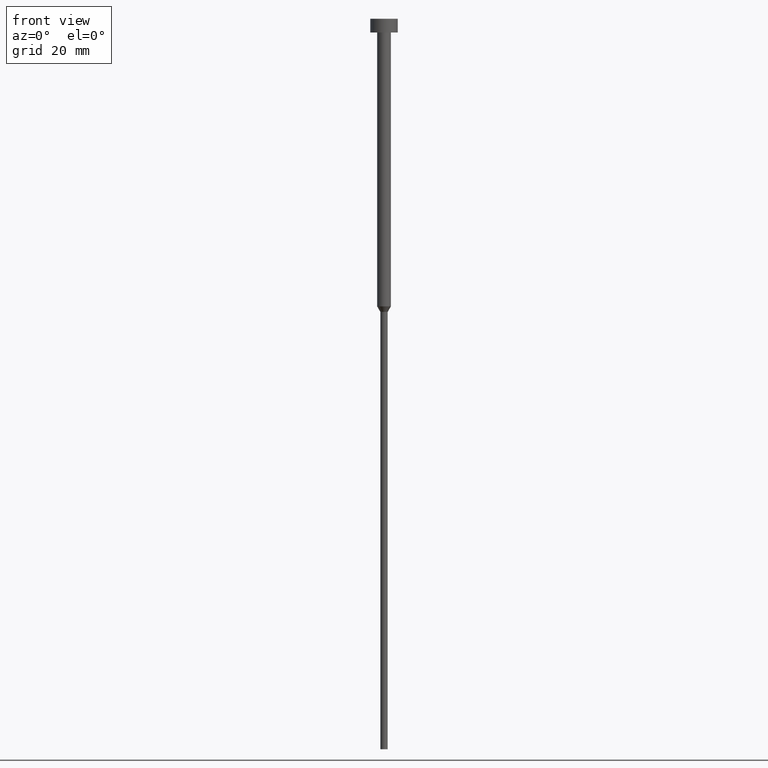
[diagram: clean part render]
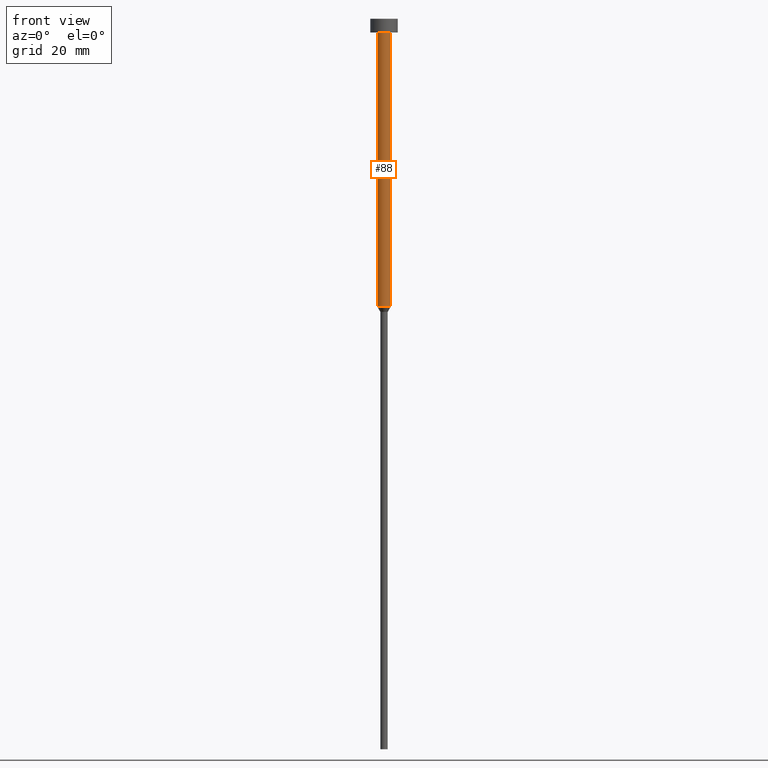
[diagram: same view with one face highlighted and labeled with its STEP entity id]
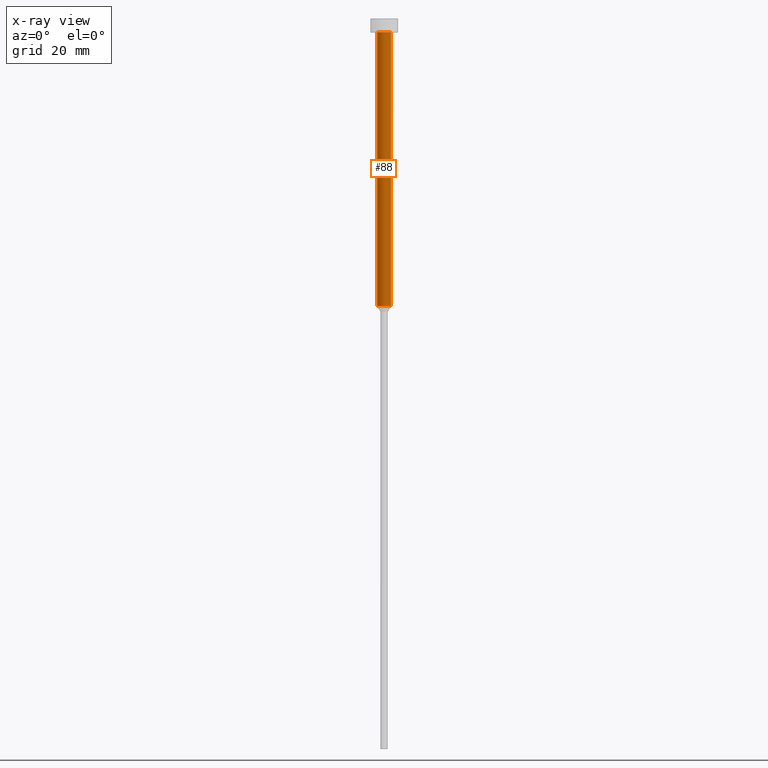
[diagram: x-ray of the same camera — body ghosted, the highlighted face saturated]
A machine part, front view. The second image highlights one B-rep face of the part: STEP entity #88.
The next image is the same camera in x-ray: the body ghosted, the highlighted face saturated — about 0% of this face is hidden behind the body in this view.
In plain terms, the highlighted cylindrical surface (edge-blend (fillet) strip) has radius 1.5 mm, axis along (-0, -0, 1).
Its self-contained STEP definition (entity closure, byte-faithful):
#4 = VERTEX_POINT ( 'NONE', #188 ) ;
#18 = DIRECTION ( 'NONE',  ( 1.000000000000000000, 0.000000000000000000, 0.000000000000000000 ) ) ;
#28 = DIRECTION ( 'NONE',  ( 1.000000000000000000, 0.000000000000000000, 0.000000000000000000 ) ) ;
#39 = DIRECTION ( 'NONE',  ( -0.000000000000000000, -0.000000000000000000, 1.000000000000000000 ) ) ;
#54 = ORIENTED_EDGE ( 'NONE', *, *, #218, .T. ) ;
#56 = CIRCLE ( 'NONE', #113, 1.500000000000000000 ) ;
#58 = DIRECTION ( 'NONE',  ( -0.000000000000000000, -0.000000000000000000, 1.000000000000000000 ) ) ;
#77 = CIRCLE ( 'NONE', #172, 1.500000000000000000 ) ;
#81 = EDGE_CURVE ( 'NONE', #109, #323, #56, .T. ) ;
#88 = ADVANCED_FACE ( 'NONE', ( #124 ), #232, .T. ) ;
#93 = DIRECTION ( 'NONE',  ( 1.000000000000000000, 0.000000000000000000, 0.000000000000000000 ) ) ;
#108 = DIRECTION ( 'NONE',  ( -0.000000000000000000, -0.000000000000000000, 1.000000000000000000 ) ) ;
#109 = VERTEX_POINT ( 'NONE', #355 ) ;
#113 = AXIS2_PLACEMENT_3D ( 'NONE', #155, #58, #93 ) ;
#124 = FACE_OUTER_BOUND ( 'NONE', #244, .T. ) ;
#140 = CARTESIAN_POINT ( 'NONE',  ( -1.500000000000000000, 1.836970198721029934E-16, -3.000000000000000888 ) ) ;
#155 = CARTESIAN_POINT ( 'NONE',  ( 0.000000000000000000, 0.000000000000000000, -63.00000000000000000 ) ) ;
#170 = ORIENTED_EDGE ( 'NONE', *, *, #354, .F. ) ;
#172 = AXIS2_PLACEMENT_3D ( 'NONE', #327, #39, #18 ) ;
#188 = CARTESIAN_POINT ( 'NONE',  ( 1.500000000000000000, 0.000000000000000000, -3.000000000000000888 ) ) ;
#199 = DIRECTION ( 'NONE',  ( -0.000000000000000000, -0.000000000000000000, 1.000000000000000000 ) ) ;
#203 = DIRECTION ( 'NONE',  ( -0.000000000000000000, -0.000000000000000000, 1.000000000000000000 ) ) ;
#218 = EDGE_CURVE ( 'NONE', #323, #4, #237, .T. ) ;
#228 = CARTESIAN_POINT ( 'NONE',  ( 0.000000000000000000, 0.000000000000000000, 0.000000000000000000 ) ) ;
#232 = CYLINDRICAL_SURFACE ( 'NONE', #293, 1.500000000000000000 ) ;
#237 = LINE ( 'NONE', #241, #250 ) ;
#241 = CARTESIAN_POINT ( 'NONE',  ( 1.500000000000000000, 0.000000000000000000, 0.000000000000000000 ) ) ;
#243 = CARTESIAN_POINT ( 'NONE',  ( 1.500000000000000000, 0.000000000000000000, -63.00000000000000000 ) ) ;
#244 = EDGE_LOOP ( 'NONE', ( #170, #332, #54, #295 ) ) ;
#247 = LINE ( 'NONE', #346, #319 ) ;
#250 = VECTOR ( 'NONE', #203, 1000.000000000000000 ) ;
#264 = EDGE_CURVE ( 'NONE', #268, #4, #77, .T. ) ;
#268 = VERTEX_POINT ( 'NONE', #140 ) ;
#293 = AXIS2_PLACEMENT_3D ( 'NONE', #228, #199, #28 ) ;
#295 = ORIENTED_EDGE ( 'NONE', *, *, #264, .F. ) ;
#319 = VECTOR ( 'NONE', #108, 1000.000000000000000 ) ;
#323 = VERTEX_POINT ( 'NONE', #243 ) ;
#327 = CARTESIAN_POINT ( 'NONE',  ( 0.000000000000000000, 0.000000000000000000, -3.000000000000000888 ) ) ;
#332 = ORIENTED_EDGE ( 'NONE', *, *, #81, .T. ) ;
#346 = CARTESIAN_POINT ( 'NONE',  ( -1.500000000000000000, 1.836970198721029934E-16, 0.000000000000000000 ) ) ;
#354 = EDGE_CURVE ( 'NONE', #109, #268, #247, .T. ) ;
#355 = CARTESIAN_POINT ( 'NONE',  ( -1.500000000000000000, 1.836970198721029934E-16, -63.00000000000000000 ) ) ;